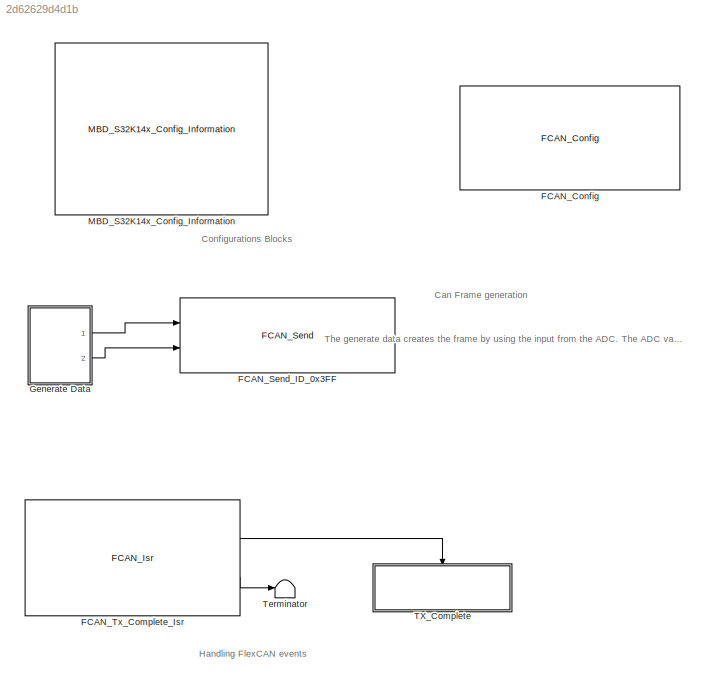
MODEL slx_2d62629d4d1b
KIND model
CONFIG AbsTol = auto
CONFIG EnableMultiTasking = on
CONFIG FixedStep = 0.1
CONFIG InitFcn = mbd_s32k14_consistency_checks(bdroot(gcs));
CONFIG MaxStep = auto
CONFIG MinStep = auto
CONFIG RelTol = 1e-3
CONFIG SampleTimeConstraint = Unconstrained
CONFIG Solver = FixedStepDiscrete
CONFIG SolverName = FixedStepDiscrete
CONFIG StartTime = 0.0
CONFIG StopTime = 10.0
BLOCK [Reference] FCAN_Config  REF=mbd_s32k14_ec_toolbox/S32K14x/Communication Blocks/Flex CAN Blocks/FCAN_Config
  Ports = []
  Priority = 1
  SourceBlock = mbd_s32k14_ec_toolbox/S32K14x/Communication Blocks/Flex CAN Blocks/FCAN_Config
  SourceType = fcan_s32k14_config
BLOCK [Reference] FCAN_Send_ID_0x3FF  REF=mbd_s32k14_ec_toolbox/S32K14x/Communication Blocks/Flex CAN Blocks/FCAN_Send
  Ports = [2]
  Priority = 2
  SourceBlock = mbd_s32k14_ec_toolbox/S32K14x/Communication Blocks/Flex CAN Blocks/FCAN_Send
  SourceType = fcan_s32k14_send
BLOCK [Reference] FCAN_Tx_Complete_Isr  REF=mbd_s32k14_ec_toolbox/S32K14x/Communication Blocks/Flex CAN Blocks/FCAN_Isr
  Ports = [0, 2]
  SourceBlock = mbd_s32k14_ec_toolbox/S32K14x/Communication Blocks/Flex CAN Blocks/FCAN_Isr
  SourceType = fcan_s32k14_isr
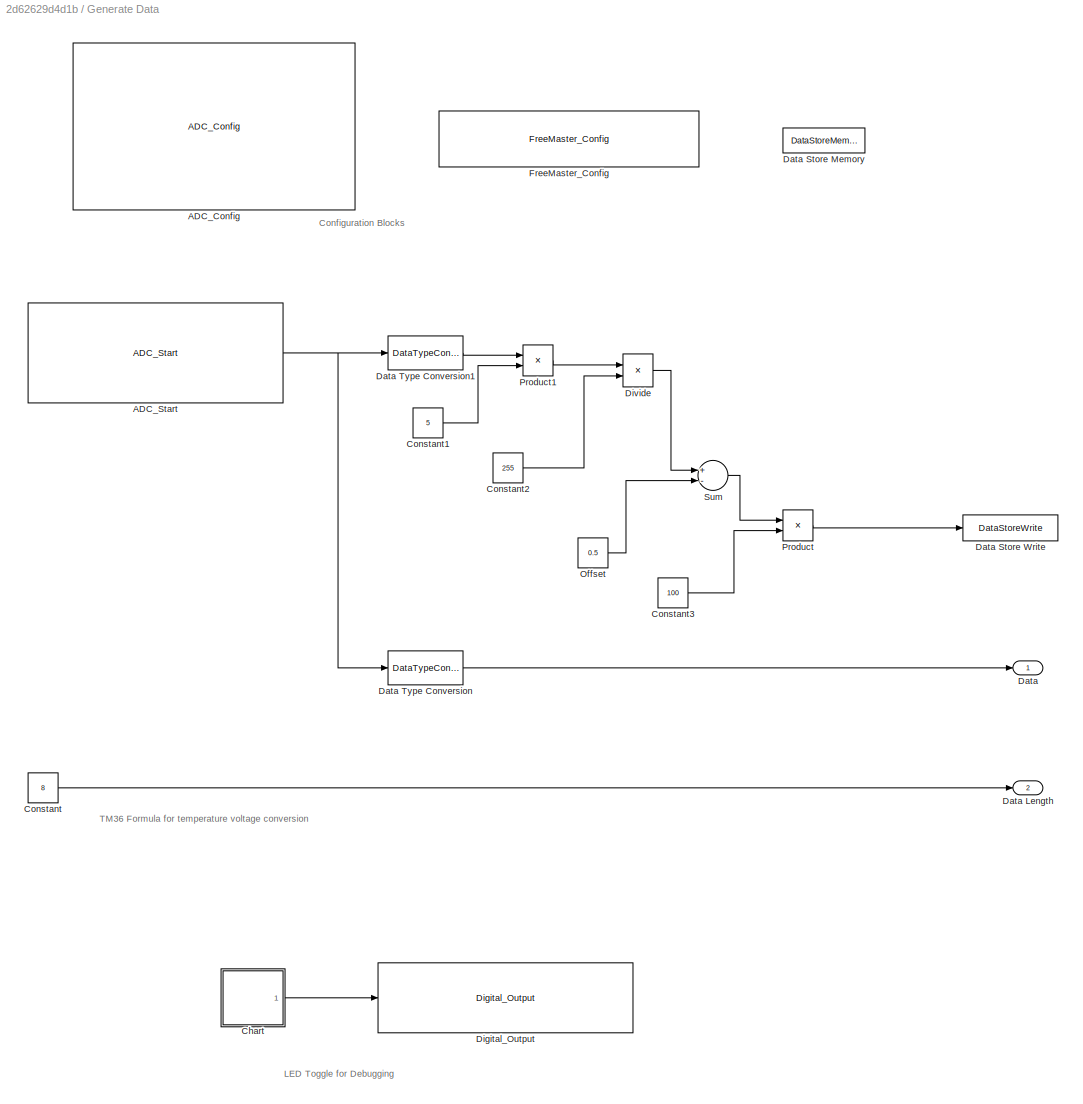
BLOCK [SubSystem] Generate Data
  Ports = [0, 2]
  RequestExecContextInheritance = off
  Variant = off
BLOCK [Reference] Generate Data/ADC_Config  REF=mbd_s32k14_ec_toolbox/S32K14x/Motor Control Blocks/ADC Blocks/ADC_Config
  Ports = []
  Priority = 1
  SourceBlock = mbd_s32k14_ec_toolbox/S32K14x/Motor Control Blocks/ADC Blocks/ADC_Config
  SourceType = adc_s32k14_config_block
BLOCK [Reference] Generate Data/ADC_Start  REF=mbd_s32k14_ec_toolbox/S32K14x/Motor Control Blocks/ADC Blocks/ADC_Start
  Ports = [0, 1]
  Priority = 2
  SourceBlock = mbd_s32k14_ec_toolbox/S32K14x/Motor Control Blocks/ADC Blocks/ADC_Start
  SourceType = adc_s32k14_start_block
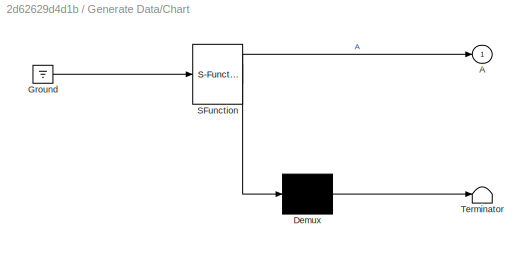
BLOCK [SubSystem] Generate Data/Chart
  ErrorFcn = Stateflow.Translate.translate
  PermitHierarchicalResolution = ExplicitOnly
  Ports = [0, 1]
  RequestExecContextInheritance = off
  SFBlockType = Chart
  TreatAsAtomicUnit = on
  Variant = off
BLOCK [Outport] Generate Data/Chart/ A
  IconDisplay = Port number
BLOCK [Demux] Generate Data/Chart/ Demux 
  Outputs = 1
  Ports = [1, 1]
BLOCK [Ground] Generate Data/Chart/ Ground 
BLOCK [S-Function] Generate Data/Chart/ SFunction 
  EnableBusSupport = on
  FunctionName = sf_sfun
  PortCounts = [1 2]
  Ports = [1, 2]
  SFcnIsStateOwnerBlock = off
  SFunctionDeploymentMode = off
  Tag = Stateflow S-Function flexcan_can_fd_master_s32k14_Main_1 3
BLOCK [Terminator] Generate Data/Chart/ Terminator 
BLOCK [Constant] Generate Data/Constant
  OutDataTypeStr = uint8
  Value = 8
BLOCK [Constant] Generate Data/Constant1
  OutDataTypeStr = double
  Value = 5
BLOCK [Constant] Generate Data/Constant2
  OutDataTypeStr = double
  Value = 255
BLOCK [Constant] Generate Data/Constant3
  OutDataTypeStr = double
  Value = 100
BLOCK [Outport] Generate Data/Data
  IconDisplay = Port number
BLOCK [Outport] Generate Data/Data Length
  IconDisplay = Port number
  Port = 2
BLOCK [DataStoreMemory] Generate Data/Data Store Memory
  DataStoreName = TemperatureinC
  OutDataTypeStr = double
  ReadBeforeWriteMsg = warning
  ShowAdditionalParam = off
  SignalType = real
  WriteAfterReadMsg = warning
  WriteAfterWriteMsg = warning
BLOCK [DataStoreWrite] Generate Data/Data Store Write
  DataStoreName = TemperatureinC
  Ports = [1]
BLOCK [DataTypeConversion] Generate Data/Data Type Conversion
  OutDataTypeStr = uint8
  RndMeth = Floor
  SaturateOnIntegerOverflow = off
BLOCK [DataTypeConversion] Generate Data/Data Type Conversion1
  OutDataTypeStr = double
  RndMeth = Floor
  SaturateOnIntegerOverflow = off
BLOCK [Reference] Generate Data/Digital_Output  REF=mbd_s32k14_ec_toolbox/S32K14x/Peripheral Interface Blocks/Digital_Output
  Ports = [1]
  SourceBlock = mbd_s32k14_ec_toolbox/S32K14x/Peripheral Interface Blocks/Digital_Output
  SourceType = gpio_s32k14_output
BLOCK [Product] Generate Data/Divide
  InputSameDT = off
  Inputs = */
  OutDataTypeStr = double
  Ports = [2, 1]
  RndMeth = Floor
  SaturateOnIntegerOverflow = off
BLOCK [Reference] Generate Data/FreeMaster_Config  REF=mbd_s32k14_ec_toolbox/S32K14x/Utility Blocks/FreeMaster_Config
  Ports = []
  SourceBlock = mbd_s32k14_ec_toolbox/S32K14x/Utility Blocks/FreeMaster_Config
  SourceType = fm_s32k14_config
BLOCK [Constant] Generate Data/Offset
  OutDataTypeStr = double
  Value = 0.5
BLOCK [Product] Generate Data/Product
  InputSameDT = off
  OutDataTypeStr = double
  Ports = [2, 1]
  RndMeth = Floor
  SaturateOnIntegerOverflow = off
BLOCK [Product] Generate Data/Product1
  OutDataTypeStr = double
  Ports = [2, 1]
  RndMeth = Floor
  SaturateOnIntegerOverflow = off
BLOCK [Sum] Generate Data/Sum
  AccumDataTypeStr = double
  InputSameDT = off
  Inputs = +-
  OutDataTypeStr = double
  Ports = [2, 1]
  SaturateOnIntegerOverflow = off
BLOCK [Reference] MBD_S32K14x_Config_Information  REF=mbd_s32k14_ec_toolbox/S32K14x/MBD_S32K14x_Config_Information
  Ports = []
  SourceBlock = mbd_s32k14_ec_toolbox/S32K14x/MBD_S32K14x_Config_Information
  SourceType = MBDTBX_EC_S32K14
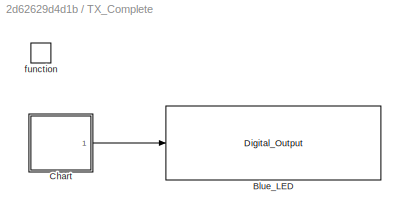
BLOCK [SubSystem] TX_Complete
  Ports = [0, 0, 0, 1]
  RTWSystemCode = Nonreusable function
  RequestExecContextInheritance = off
  TreatAsAtomicUnit = on
  Variant = off
BLOCK [Reference] TX_Complete/Blue_LED  REF=mbd_s32k14_ec_toolbox/S32K14x/Peripheral Interface Blocks/Digital_Output
  Ports = [1]
  SourceBlock = mbd_s32k14_ec_toolbox/S32K14x/Peripheral Interface Blocks/Digital_Output
  SourceType = gpio_s32k14_output
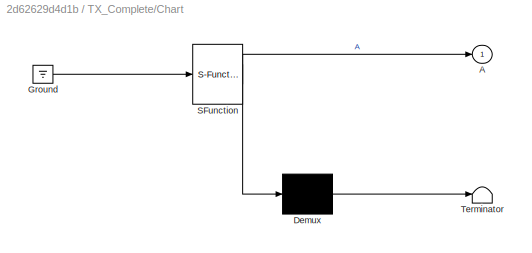
BLOCK [SubSystem] TX_Complete/Chart
  ErrorFcn = Stateflow.Translate.translate
  PermitHierarchicalResolution = ExplicitOnly
  Ports = [0, 1]
  RequestExecContextInheritance = off
  SFBlockType = Chart
  TreatAsAtomicUnit = on
  Variant = off
BLOCK [Outport] TX_Complete/Chart/ A
  IconDisplay = Port number
BLOCK [Demux] TX_Complete/Chart/ Demux 
  Outputs = 1
  Ports = [1, 1]
BLOCK [Ground] TX_Complete/Chart/ Ground 
BLOCK [S-Function] TX_Complete/Chart/ SFunction 
  EnableBusSupport = on
  FunctionName = sf_sfun
  PortCounts = [1 2]
  Ports = [1, 2]
  SFcnIsStateOwnerBlock = off
  SFunctionDeploymentMode = off
  Tag = Stateflow S-Function flexcan_can_fd_master_s32k14_Main_1 5
BLOCK [Terminator] TX_Complete/Chart/ Terminator 
BLOCK [TriggerPort] TX_Complete/function
  Ports = []
  StatesWhenEnabling = held
  TriggerType = function-call
  VariantControl = Variant
BLOCK [Terminator] Terminator
ANNOTATION (root): Can Frame generation
ANNOTATION (root): Handling FlexCAN events
ANNOTATION (root): Configurations Blocks
ANNOTATION (root): The generate data creates the frame by using the input from the ADC. The ADC value is calculated based on the input from the TM36 sensor. The formula calculation for the temperature can be
ANNOTATION Generate Data: Configuration Blocks
ANNOTATION Generate Data: LED Toggle for Debugging
ANNOTATION Generate Data: TM36 Formula for temperature voltage conversion
LINE FCAN_Tx_Complete_Isr:1 -> TX_Complete:trigger
LINE FCAN_Tx_Complete_Isr:2 -> Terminator:1
NET Generate Data/ADC_Start:1 -> Generate Data/Data Type Conversion1:1, Generate Data/Data Type Conversion:1
LINE Generate Data/Chart:1 -> Generate Data/Digital_Output:1
LINE Generate Data/Constant1:1 -> Generate Data/Product1:2
LINE Generate Data/Constant2:1 -> Generate Data/Divide:2
LINE Generate Data/Constant3:1 -> Generate Data/Product:2
LINE Generate Data/Constant:1 -> Generate Data/Data Length:1
LINE Generate Data/Data Type Conversion1:1 -> Generate Data/Product1:1
LINE Generate Data/Data Type Conversion:1 -> Generate Data/Data:1
LINE Generate Data/Divide:1 -> Generate Data/Sum:1
LINE Generate Data/Offset:1 -> Generate Data/Sum:2
LINE Generate Data/Product1:1 -> Generate Data/Divide:1
LINE Generate Data/Product:1 -> Generate Data/Data Store Write:1
LINE Generate Data/Sum:1 -> Generate Data/Product:1
LINE Generate Data:1 -> FCAN_Send_ID_0x3FF:1
LINE Generate Data:2 -> FCAN_Send_ID_0x3FF:2
LINE TX_Complete/Chart:1 -> TX_Complete/Blue_LED:1
note: NET lines group one-source signal fan-out (src -> all destinations, sorted); 1:1 wires keep LINE
CHART Generate Data/Chart states=2 transitions=3
  STATE_LABEL 'A'
  STATE_LABEL 'A1'
CHART TX_Complete/Chart states=2 transitions=3
  STATE_LABEL 'A'
  STATE_LABEL 'A1'
